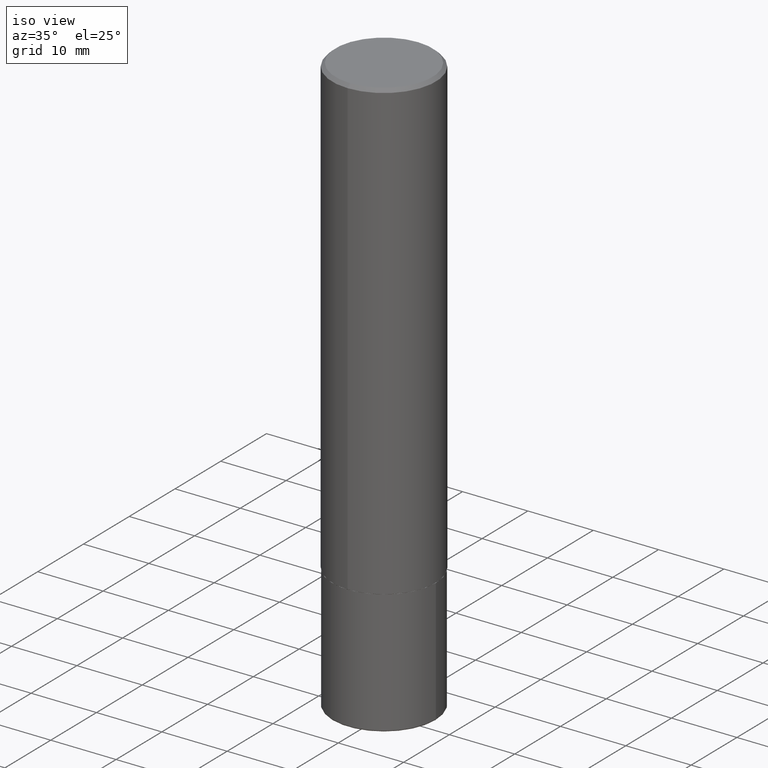
[diagram: clean part render]
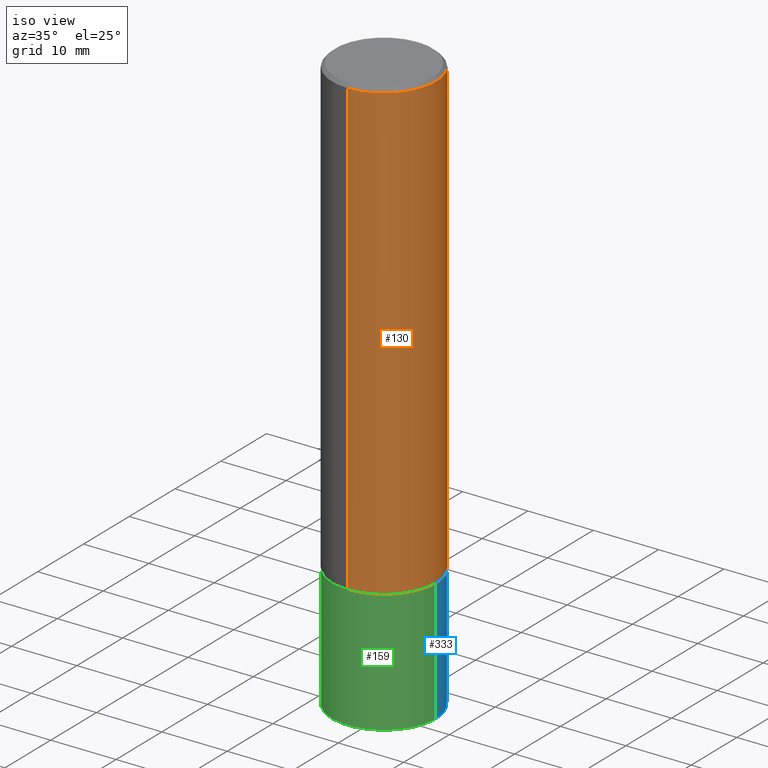
[diagram: same view with three faces highlighted in distinct colors, each labeled with its STEP entity id]
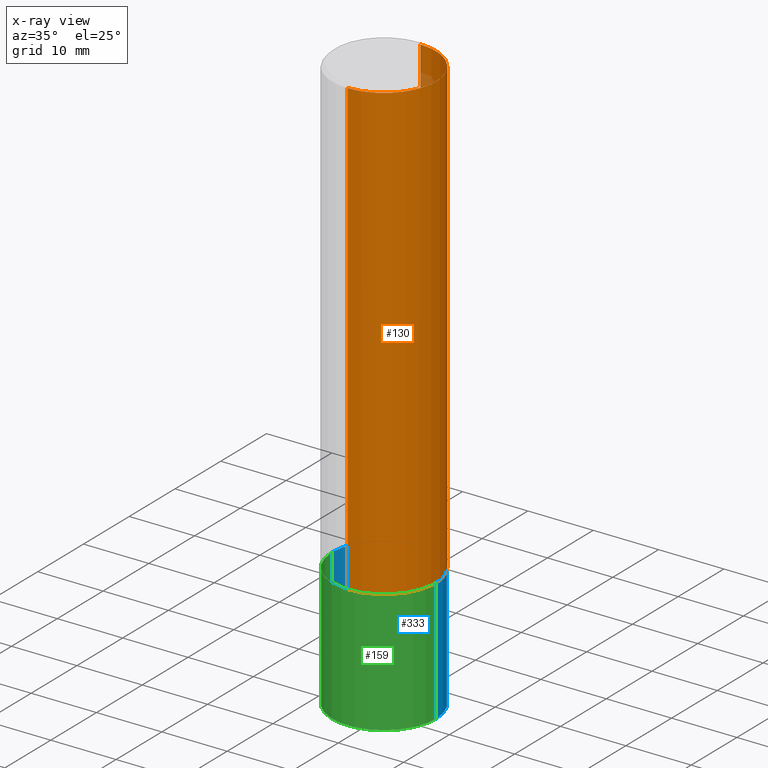
[diagram: x-ray of the same camera — body ghosted, the three highlighted faces saturated]
A machine part, iso view with three faces highlighted in distinct colors.
The next image is the same camera in x-ray (body ghosted, the three faces saturated) — at least one of them is partly hidden behind the body in this view.
Their STEP definitions:

[orange] entity #130 — the highlighted cylindrical surface (partial cylindrical patch) has radius 7.9375 mm, axis along (-0, 0, 1).
#22 = DIRECTION ( 'NONE',  ( -6.982962677686266711E-15, -1.000000000000000000, 3.492442925969092226E-15 ) ) ;
#30 = DIRECTION ( 'NONE',  ( -2.444797333483953649E-29, 3.492442925969092226E-15, 1.000000000000000000 ) ) ;
#33 = EDGE_CURVE ( 'NONE', #230, #388, #48, .T. ) ;
#43 = ORIENTED_EDGE ( 'NONE', *, *, #364, .F. ) ;
#45 = CARTESIAN_POINT ( 'NONE',  ( -2.182175836776958741E-15, -0.3125000000000000555, 1.091388414365341542E-15 ) ) ;
#48 = LINE ( 'NONE', #206, #178 ) ;
#57 = LINE ( 'NONE', #45, #381 ) ;
#59 = CIRCLE ( 'NONE', #147, 0.3125000000000002776 ) ;
#67 = EDGE_CURVE ( 'NONE', #262, #70, #57, .T. ) ;
#69 = CARTESIAN_POINT ( 'NONE',  ( 2.182175836776957558E-15, 0.3124999999999998335, -0.02000000000000116268 ) ) ;
#70 = VERTEX_POINT ( 'NONE', #177 ) ;
#79 = CARTESIAN_POINT ( 'NONE',  ( 0.000000000000000000, 0.000000000000000000, 0.000000000000000000 ) ) ;
#89 = DIRECTION ( 'NONE',  ( -2.444797333483953649E-29, 3.492442925969092620E-15, 1.000000000000000000 ) ) ;
#92 = AXIS2_PLACEMENT_3D ( 'NONE', #79, #243, #22 ) ;
#93 = CARTESIAN_POINT ( 'NONE',  ( -2.182175836776892872E-15, -0.3125000000000099365, -2.748999999999999222 ) ) ;
#101 = CARTESIAN_POINT ( 'NONE',  ( 2.220446049250347791E-15, 0.3124999999999906741, -2.749000000000000998 ) ) ;
#104 = DIRECTION ( 'NONE',  ( -6.982962677686265133E-15, -1.000000000000000000, 3.496765431890258103E-15 ) ) ;
#118 = FACE_OUTER_BOUND ( 'NONE', #222, .T. ) ;
#130 = ADVANCED_FACE ( 'NONE', ( #118 ), #184, .T. ) ;
#147 = AXIS2_PLACEMENT_3D ( 'NONE', #355, #30, #286 ) ;
#177 = CARTESIAN_POINT ( 'NONE',  ( -2.143905624303602036E-15, -0.3124999999999999445, -0.01999999999999897693 ) ) ;
#178 = VECTOR ( 'NONE', #89, 39.37007874015748143 ) ;
#184 = CYLINDRICAL_SURFACE ( 'NONE', #92, 0.3125000000000000555 ) ;
#198 = CARTESIAN_POINT ( 'NONE',  ( 4.889594666967924290E-31, -6.984885851938207279E-17, -0.02000000000000006981 ) ) ;
#206 = CARTESIAN_POINT ( 'NONE',  ( 2.220446049250313081E-15, 0.3125000000000000555, -1.091388414365341542E-15 ) ) ;
#213 = DIRECTION ( 'NONE',  ( -2.444797333483953649E-29, 3.492442925969092620E-15, 1.000000000000000000 ) ) ;
#222 = EDGE_LOOP ( 'NONE', ( #236, #332, #43, #268 ) ) ;
#230 = VERTEX_POINT ( 'NONE', #101 ) ;
#232 = AXIS2_PLACEMENT_3D ( 'NONE', #198, #327, #104 ) ;
#236 = ORIENTED_EDGE ( 'NONE', *, *, #319, .T. ) ;
#243 = DIRECTION ( 'NONE',  ( -2.444797333483953649E-29, 3.492442925969092226E-15, 1.000000000000000000 ) ) ;
#259 = CIRCLE ( 'NONE', #232, 0.3124999999999998890 ) ;
#262 = VERTEX_POINT ( 'NONE', #93 ) ;
#268 = ORIENTED_EDGE ( 'NONE', *, *, #67, .F. ) ;
#286 = DIRECTION ( 'NONE',  ( -6.982962677686265922E-15, -1.000000000000000000, 3.496765431890253764E-15 ) ) ;
#319 = EDGE_CURVE ( 'NONE', #262, #230, #59, .T. ) ;
#327 = DIRECTION ( 'NONE',  ( -2.444797333483953649E-29, 3.492442925969092226E-15, 1.000000000000000000 ) ) ;
#332 = ORIENTED_EDGE ( 'NONE', *, *, #33, .T. ) ;
#355 = CARTESIAN_POINT ( 'NONE',  ( 6.720747869747387921E-29, -9.600725603489034077E-15, -2.749000000000000110 ) ) ;
#364 = EDGE_CURVE ( 'NONE', #70, #388, #259, .T. ) ;
#381 = VECTOR ( 'NONE', #213, 39.37007874015748143 ) ;
#388 = VERTEX_POINT ( 'NONE', #69 ) ;

[blue] entity #333 — the highlighted cylindrical surface (partial cylindrical patch) has radius 7.9375 mm, axis along (-0, 0, 1).
#32 = CARTESIAN_POINT ( 'NONE',  ( 0.3125000000000000000, -2.182175836776958347E-15, 1.523805242436230075E-29 ) ) ;
#35 = ORIENTED_EDGE ( 'NONE', *, *, #408, .F. ) ;
#66 = CARTESIAN_POINT ( 'NONE',  ( 0.000000000000000000, 0.000000000000000000, 0.000000000000000000 ) ) ;
#72 = LINE ( 'NONE', #324, #417 ) ;
#77 = AXIS2_PLACEMENT_3D ( 'NONE', #135, #137, #263 ) ;
#86 = AXIS2_PLACEMENT_3D ( 'NONE', #66, #252, #379 ) ;
#124 = DIRECTION ( 'NONE',  ( 1.000000000000000000, -6.982962677686269077E-15, 0.000000000000000000 ) ) ;
#128 = CYLINDRICAL_SURFACE ( 'NONE', #86, 0.3125000000000000000 ) ;
#134 = CARTESIAN_POINT ( 'NONE',  ( -0.3125000000000000000, -8.672975727940299906E-15, -2.750000000000000000 ) ) ;
#135 = CARTESIAN_POINT ( 'NONE',  ( 6.725039217009124520E-29, -9.601573681818649859E-15, -2.750000000000000000 ) ) ;
#137 = DIRECTION ( 'NONE',  ( -2.445468806185136597E-29, 3.491481338843145583E-15, 1.000000000000000000 ) ) ;
#140 = CIRCLE ( 'NONE', #296, 0.3125000000000000000 ) ;
#142 = ORIENTED_EDGE ( 'NONE', *, *, #389, .T. ) ;
#162 = VECTOR ( 'NONE', #165, 39.37007874015748143 ) ;
#165 = DIRECTION ( 'NONE',  ( -2.445468806185136877E-29, 3.491481338843145188E-15, 1.000000000000000000 ) ) ;
#169 = DIRECTION ( 'NONE',  ( -2.445468806185136877E-29, 3.491481338843145188E-15, 1.000000000000000000 ) ) ;
#179 = CIRCLE ( 'NONE', #77, 0.3125000000000000000 ) ;
#201 = ORIENTED_EDGE ( 'NONE', *, *, #380, .F. ) ;
#227 = EDGE_CURVE ( 'NONE', #295, #393, #140, .T. ) ;
#233 = LINE ( 'NONE', #32, #162 ) ;
#252 = DIRECTION ( 'NONE',  ( -2.445468806185136597E-29, 3.491481338843145583E-15, 1.000000000000000000 ) ) ;
#254 = CARTESIAN_POINT ( 'NONE',  ( 8.534686133586126543E-29, -1.218526987256257612E-14, -3.489999999999999769 ) ) ;
#263 = DIRECTION ( 'NONE',  ( 1.000000000000000000, -6.982962677686269077E-15, 0.000000000000000000 ) ) ;
#265 = CARTESIAN_POINT ( 'NONE',  ( 0.3125000000000000000, -1.178374951859560978E-14, -2.750000000000000000 ) ) ;
#292 = CARTESIAN_POINT ( 'NONE',  ( -0.3124999999999998890, -9.964823823312263034E-15, -3.489999999999999769 ) ) ;
#295 = VERTEX_POINT ( 'NONE', #413 ) ;
#296 = AXIS2_PLACEMENT_3D ( 'NONE', #254, #350, #124 ) ;
#298 = EDGE_LOOP ( 'NONE', ( #323, #142, #201, #35 ) ) ;
#323 = ORIENTED_EDGE ( 'NONE', *, *, #227, .T. ) ;
#324 = CARTESIAN_POINT ( 'NONE',  ( -0.3125000000000000000, 2.220446049250313081E-15, -1.537167215704658232E-29 ) ) ;
#333 = ADVANCED_FACE ( 'NONE', ( #414 ), #128, .T. ) ;
#350 = DIRECTION ( 'NONE',  ( -2.445468806185136597E-29, 3.491481338843145583E-15, 1.000000000000000000 ) ) ;
#360 = VERTEX_POINT ( 'NONE', #134 ) ;
#362 = VERTEX_POINT ( 'NONE', #265 ) ;
#379 = DIRECTION ( 'NONE',  ( 1.000000000000000000, -6.982962677686266711E-15, 4.876176775795936353E-29 ) ) ;
#380 = EDGE_CURVE ( 'NONE', #362, #360, #179, .T. ) ;
#389 = EDGE_CURVE ( 'NONE', #393, #360, #72, .T. ) ;
#393 = VERTEX_POINT ( 'NONE', #292 ) ;
#408 = EDGE_CURVE ( 'NONE', #295, #362, #233, .T. ) ;
#413 = CARTESIAN_POINT ( 'NONE',  ( 0.3124999999999998890, -1.436744570933953446E-14, -3.489999999999999769 ) ) ;
#414 = FACE_OUTER_BOUND ( 'NONE', #298, .T. ) ;
#417 = VECTOR ( 'NONE', #169, 39.37007874015748143 ) ;

[green] entity #159 — the highlighted cylindrical surface (partial cylindrical patch) has radius 7.9375 mm, axis along (-0, 0, 1).
#32 = CARTESIAN_POINT ( 'NONE',  ( 0.3125000000000000000, -2.182175836776958347E-15, 1.523805242436230075E-29 ) ) ;
#47 = AXIS2_PLACEMENT_3D ( 'NONE', #61, #315, #354 ) ;
#55 = EDGE_CURVE ( 'NONE', #360, #362, #197, .T. ) ;
#61 = CARTESIAN_POINT ( 'NONE',  ( 0.000000000000000000, 0.000000000000000000, 0.000000000000000000 ) ) ;
#72 = LINE ( 'NONE', #324, #417 ) ;
#75 = ORIENTED_EDGE ( 'NONE', *, *, #55, .F. ) ;
#84 = CIRCLE ( 'NONE', #404, 0.3125000000000000000 ) ;
#90 = CYLINDRICAL_SURFACE ( 'NONE', #47, 0.3125000000000000000 ) ;
#105 = ORIENTED_EDGE ( 'NONE', *, *, #144, .T. ) ;
#116 = DIRECTION ( 'NONE',  ( 1.000000000000000000, -6.982962677686269077E-15, 0.000000000000000000 ) ) ;
#121 = DIRECTION ( 'NONE',  ( 1.000000000000000000, -6.982962677686269077E-15, 0.000000000000000000 ) ) ;
#125 = AXIS2_PLACEMENT_3D ( 'NONE', #336, #215, #116 ) ;
#134 = CARTESIAN_POINT ( 'NONE',  ( -0.3125000000000000000, -8.672975727940299906E-15, -2.750000000000000000 ) ) ;
#144 = EDGE_CURVE ( 'NONE', #393, #295, #84, .T. ) ;
#155 = DIRECTION ( 'NONE',  ( -2.445468806185136597E-29, 3.491481338843145583E-15, 1.000000000000000000 ) ) ;
#159 = ADVANCED_FACE ( 'NONE', ( #164 ), #90, .T. ) ;
#162 = VECTOR ( 'NONE', #165, 39.37007874015748143 ) ;
#164 = FACE_OUTER_BOUND ( 'NONE', #196, .T. ) ;
#165 = DIRECTION ( 'NONE',  ( -2.445468806185136877E-29, 3.491481338843145188E-15, 1.000000000000000000 ) ) ;
#169 = DIRECTION ( 'NONE',  ( -2.445468806185136877E-29, 3.491481338843145188E-15, 1.000000000000000000 ) ) ;
#187 = CARTESIAN_POINT ( 'NONE',  ( 8.534686133586126543E-29, -1.218526987256257612E-14, -3.489999999999999769 ) ) ;
#196 = EDGE_LOOP ( 'NONE', ( #294, #105, #351, #75 ) ) ;
#197 = CIRCLE ( 'NONE', #125, 0.3125000000000000000 ) ;
#215 = DIRECTION ( 'NONE',  ( -2.445468806185136597E-29, 3.491481338843145583E-15, 1.000000000000000000 ) ) ;
#233 = LINE ( 'NONE', #32, #162 ) ;
#265 = CARTESIAN_POINT ( 'NONE',  ( 0.3125000000000000000, -1.178374951859560978E-14, -2.750000000000000000 ) ) ;
#292 = CARTESIAN_POINT ( 'NONE',  ( -0.3124999999999998890, -9.964823823312263034E-15, -3.489999999999999769 ) ) ;
#294 = ORIENTED_EDGE ( 'NONE', *, *, #389, .F. ) ;
#295 = VERTEX_POINT ( 'NONE', #413 ) ;
#315 = DIRECTION ( 'NONE',  ( -2.445468806185136597E-29, 3.491481338843145583E-15, 1.000000000000000000 ) ) ;
#324 = CARTESIAN_POINT ( 'NONE',  ( -0.3125000000000000000, 2.220446049250313081E-15, -1.537167215704658232E-29 ) ) ;
#336 = CARTESIAN_POINT ( 'NONE',  ( 6.725039217009124520E-29, -9.601573681818649859E-15, -2.750000000000000000 ) ) ;
#351 = ORIENTED_EDGE ( 'NONE', *, *, #408, .T. ) ;
#354 = DIRECTION ( 'NONE',  ( 1.000000000000000000, -6.982962677686266711E-15, 4.876176775795936353E-29 ) ) ;
#360 = VERTEX_POINT ( 'NONE', #134 ) ;
#362 = VERTEX_POINT ( 'NONE', #265 ) ;
#389 = EDGE_CURVE ( 'NONE', #393, #360, #72, .T. ) ;
#393 = VERTEX_POINT ( 'NONE', #292 ) ;
#404 = AXIS2_PLACEMENT_3D ( 'NONE', #187, #155, #121 ) ;
#408 = EDGE_CURVE ( 'NONE', #295, #362, #233, .T. ) ;
#413 = CARTESIAN_POINT ( 'NONE',  ( 0.3124999999999998890, -1.436744570933953446E-14, -3.489999999999999769 ) ) ;
#417 = VECTOR ( 'NONE', #169, 39.37007874015748143 ) ;